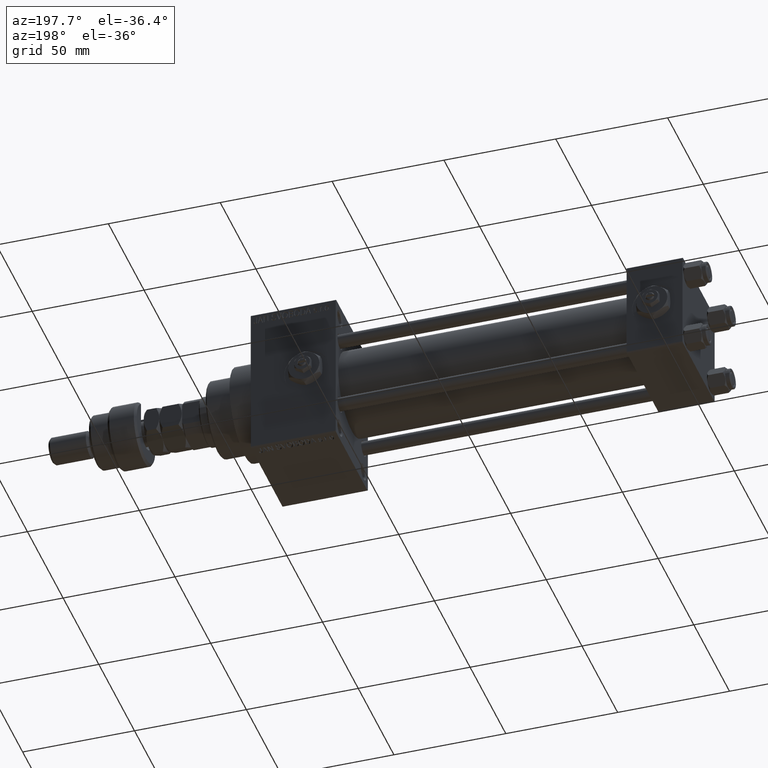
[diagram: clean part render]
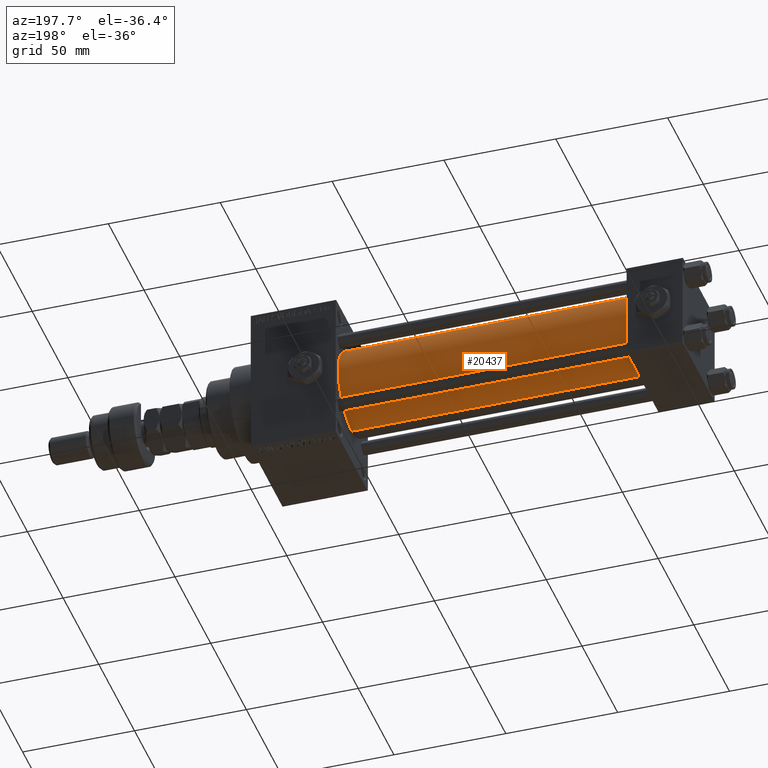
[diagram: same view with one face highlighted and labeled with its STEP entity id]
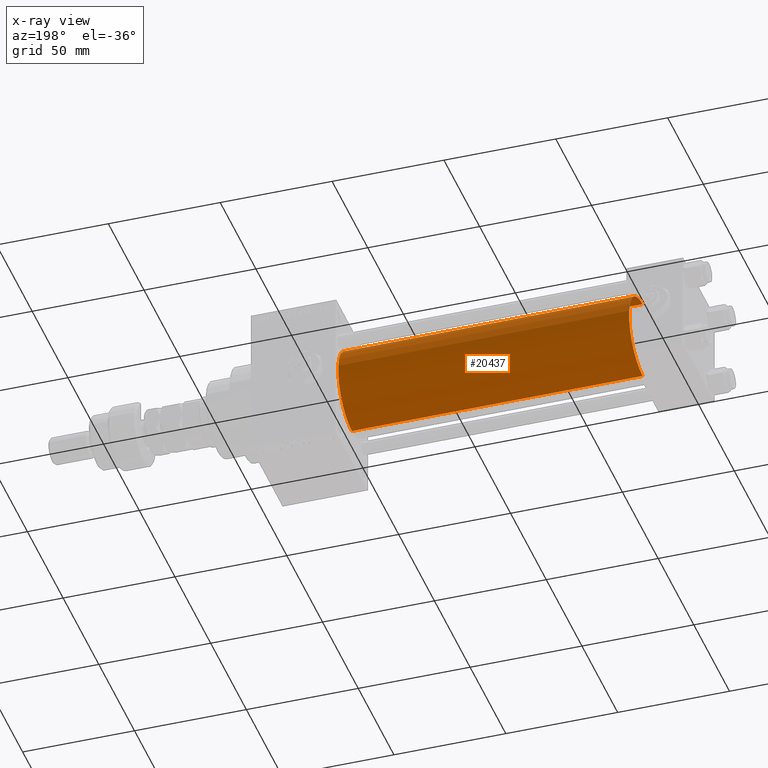
[diagram: x-ray of the same camera — body ghosted, the highlighted face saturated]
A machine part, auxiliary view. The second image highlights one B-rep face of the part: STEP entity #20437.
The next image is the same camera in x-ray: the body ghosted, the highlighted face saturated — about 0% of this face is hidden behind the body in this view.
In plain terms, the highlighted cylindrical surface (partial cylindrical patch) has radius 19 mm, axis along (-1, -0, -0).
Its self-contained STEP definition (entity closure, byte-faithful):
#292 = DIRECTION ( 'NONE',  ( -1.000000000000000000, -0.000000000000000000, -0.000000000000000000 ) ) ;
#846 = CIRCLE ( 'NONE', #12640, 19.00000000000000000 ) ;
#2665 = AXIS2_PLACEMENT_3D ( 'NONE', #50447, #19662, #23588 ) ;
#6389 = CARTESIAN_POINT ( 'NONE',  ( 24.99999999999999289, -2.752562955852396712E-16, -19.00000000000000000 ) ) ;
#6391 = EDGE_CURVE ( 'NONE', #34681, #15447, #37034, .T. ) ;
#6658 = DIRECTION ( 'NONE',  ( 1.000000000000000000, 0.000000000000000000, 0.000000000000000000 ) ) ;
#7346 = EDGE_LOOP ( 'NONE', ( #44594, #41066, #45955, #12694 ) ) ;
#12640 = AXIS2_PLACEMENT_3D ( 'NONE', #47084, #6658, #50507 ) ;
#12694 = ORIENTED_EDGE ( 'NONE', *, *, #37816, .F. ) ;
#15447 = VERTEX_POINT ( 'NONE', #6389 ) ;
#17535 = CARTESIAN_POINT ( 'NONE',  ( 155.0000000000000000, -2.602085213965210642E-15, 19.00000000000000000 ) ) ;
#17667 = AXIS2_PLACEMENT_3D ( 'NONE', #35167, #18889, #35696 ) ;
#18416 = FACE_OUTER_BOUND ( 'NONE', #7346, .T. ) ;
#18889 = DIRECTION ( 'NONE',  ( 1.000000000000000000, -0.000000000000000000, 0.000000000000000000 ) ) ;
#19365 = CIRCLE ( 'NONE', #17667, 19.00000000000000000 ) ;
#19662 = DIRECTION ( 'NONE',  ( -1.000000000000000000, -0.000000000000000000, -0.000000000000000000 ) ) ;
#20437 = ADVANCED_FACE ( 'NONE', ( #18416 ), #34434, .T. ) ;
#21156 = VECTOR ( 'NONE', #46239, 1000.000000000000000 ) ;
#23588 = DIRECTION ( 'NONE',  ( 0.000000000000000000, 0.000000000000000000, 1.000000000000000000 ) ) ;
#32091 = VERTEX_POINT ( 'NONE', #34622 ) ;
#32855 = EDGE_CURVE ( 'NONE', #34681, #42343, #846, .T. ) ;
#33904 = LINE ( 'NONE', #38624, #21156 ) ;
#34198 = EDGE_CURVE ( 'NONE', #15447, #32091, #19365, .T. ) ;
#34434 = CYLINDRICAL_SURFACE ( 'NONE', #2665, 19.00000000000000000 ) ;
#34622 = CARTESIAN_POINT ( 'NONE',  ( 24.99999999999999289, -2.602085213965210642E-15, 19.00000000000000000 ) ) ;
#34681 = VERTEX_POINT ( 'NONE', #47439 ) ;
#35167 = CARTESIAN_POINT ( 'NONE',  ( 24.99999999999999289, -2.602085213965210642E-15, 0.000000000000000000 ) ) ;
#35696 = DIRECTION ( 'NONE',  ( 0.000000000000000000, 0.000000000000000000, 1.000000000000000000 ) ) ;
#37034 = LINE ( 'NONE', #48862, #46701 ) ;
#37816 = EDGE_CURVE ( 'NONE', #42343, #32091, #33904, .T. ) ;
#38624 = CARTESIAN_POINT ( 'NONE',  ( 155.0000000000000000, -2.602085213965210642E-15, 19.00000000000000000 ) ) ;
#41066 = ORIENTED_EDGE ( 'NONE', *, *, #6391, .T. ) ;
#42343 = VERTEX_POINT ( 'NONE', #17535 ) ;
#44594 = ORIENTED_EDGE ( 'NONE', *, *, #32855, .F. ) ;
#45955 = ORIENTED_EDGE ( 'NONE', *, *, #34198, .T. ) ;
#46239 = DIRECTION ( 'NONE',  ( -1.000000000000000000, -0.000000000000000000, -0.000000000000000000 ) ) ;
#46701 = VECTOR ( 'NONE', #292, 1000.000000000000000 ) ;
#47084 = CARTESIAN_POINT ( 'NONE',  ( 155.0000000000000000, -2.602085213965210642E-15, 0.000000000000000000 ) ) ;
#47439 = CARTESIAN_POINT ( 'NONE',  ( 155.0000000000000000, -2.752562955852396712E-16, -19.00000000000000000 ) ) ;
#48862 = CARTESIAN_POINT ( 'NONE',  ( 155.0000000000000000, -2.752562955852396712E-16, -19.00000000000000000 ) ) ;
#50447 = CARTESIAN_POINT ( 'NONE',  ( 155.0000000000000000, -2.602085213965210642E-15, 0.000000000000000000 ) ) ;
#50507 = DIRECTION ( 'NONE',  ( 0.000000000000000000, 0.000000000000000000, -1.000000000000000000 ) ) ;